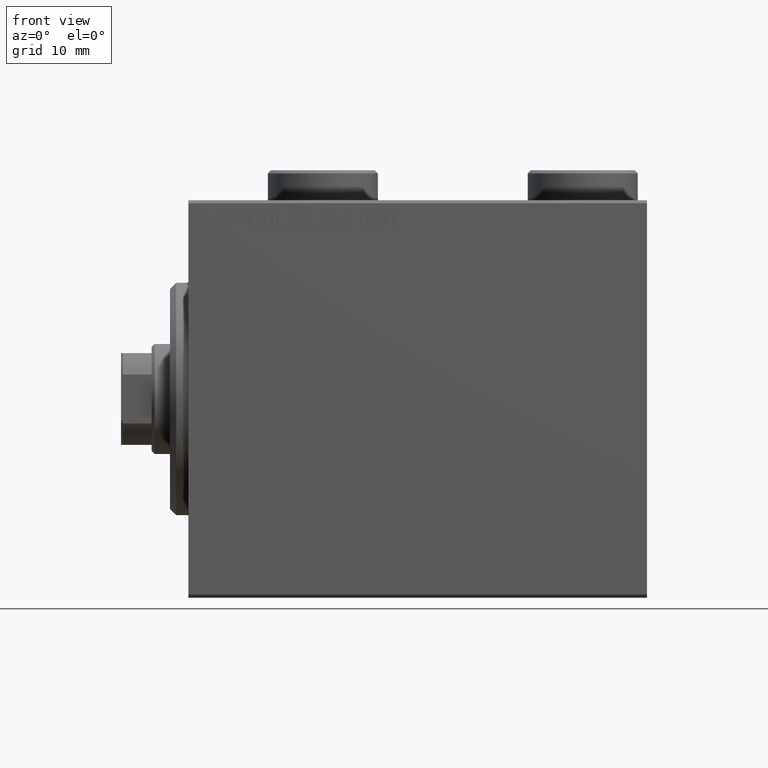
[diagram: clean part render]
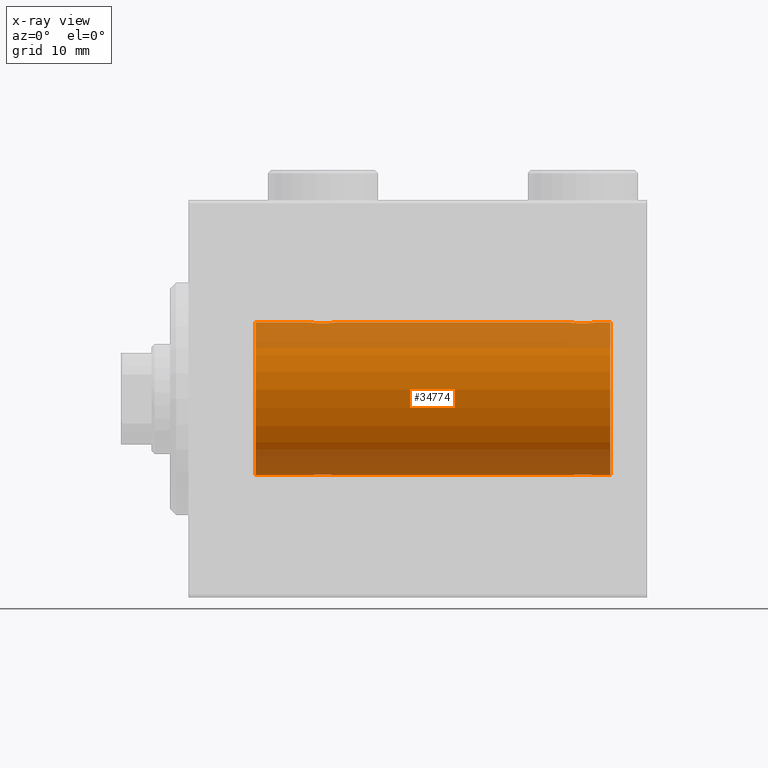
[diagram: x-ray — body ghosted, one internal face saturated and labeled with its STEP entity id]
A machine part, front view, then the same camera in x-ray: the body is ghosted and one INTERNAL B-rep face — a face not visible from any outside direction — is saturated and labeled: STEP entity #34774.
In plain terms, the highlighted cylindrical surface (partial cylindrical patch) has radius 12.5 mm, axis along (-1, -0, -0).
Its self-contained STEP definition (entity closure, byte-faithful):
#73 = CARTESIAN_POINT ( 'NONE',  ( 20.67700056892266502, -1.505544071529935968, 12.40934942683853670 ) ) ;
#268 = CARTESIAN_POINT ( 'NONE',  ( 69.00000000000000000, 0.000000000000000000, 12.50000000000000000 ) ) ;
#290 = CARTESIAN_POINT ( 'NONE',  ( 20.05255659427670167, -0.5247436444070346928, 12.49130933415156619 ) ) ;
#294 = ORIENTED_EDGE ( 'NONE', *, *, #27933, .T. ) ;
#306 = B_SPLINE_CURVE_WITH_KNOTS ( 'NONE', 3,
 ( #1788, #19990, #23441, #13068, #9159, #6612, #41434, #13995, #23895, #17221, #24127, #2705, #35188, #41898, #42118, #10070, #10307, #28270, #9839, #37974, #13533, #10528, #27586, #34515, #31735, #45342, #27818, #42337 ),
 .UNSPECIFIED., .F., .F.,
 ( 4, 2, 2, 2, 2, 2, 2, 2, 2, 2, 2, 2, 2, 4 ),
 ( 0.006262980370572151546, 0.007045658964677331722, 0.007436998261729929616, 0.007828337558782528377, 0.008219676855835125404, 0.008611016152887724165, 0.009002355449940321191, 0.009393694746992919953, 0.009785034044045518714, 0.01017637334109811748, 0.01056771263815071624, 0.01095905193520331326, 0.01174173052930854028, 0.01252440912341376555 ),
 .UNSPECIFIED. ) ;
#958 = CARTESIAN_POINT ( 'NONE',  ( 20.78145880458060901, -1.591305132013878021, -12.39851226212236313 ) ) ;
#1179 = CARTESIAN_POINT ( 'NONE',  ( 23.79785606468258052, -0.8858253204748003373, -12.46915613403960954 ) ) ;
#1329 = EDGE_CURVE ( 'NONE', #27370, #41119, #306, .T. ) ;
#1404 = CARTESIAN_POINT ( 'NONE',  ( 20.67883287148555382, -1.507135374967699670, -12.40915432986587064 ) ) ;
#1487 = LINE ( 'NONE', #43666, #9963 ) ;
#1780 = CIRCLE ( 'NONE', #38624, 12.50000000000000000 ) ;
#1788 = CARTESIAN_POINT ( 'NONE',  ( 62.50000000000000000, -7.266434456262306043E-23, 12.50000000000000000 ) ) ;
#1970 = DIRECTION ( 'NONE',  ( -1.000000000000000000, -0.000000000000000000, -0.000000000000000000 ) ) ;
#2217 = CARTESIAN_POINT ( 'NONE',  ( 23.32116712851443907, -1.507135374967700558, 12.40915432986587064 ) ) ;
#2427 = CARTESIAN_POINT ( 'NONE',  ( 66.00722151467994081, -1.321088093821072729, -12.43033959299025248 ) ) ;
#2458 = CARTESIAN_POINT ( 'NONE',  ( 66.50000000000000000, 3.163483401492493339E-15, 12.50000000000000000 ) ) ;
#2705 = CARTESIAN_POINT ( 'NONE',  ( 63.85356103036409081, -1.897190184049181161, 12.35529285772521213 ) ) ;
#2889 = CARTESIAN_POINT ( 'NONE',  ( 64.76391373102437399, -1.986793270638192999, -12.34112317291865146 ) ) ;
#4417 = CARTESIAN_POINT ( 'NONE',  ( 21.86910032676576421, -2.000082296475566679, -12.33894933996983490 ) ) ;
#4633 = DIRECTION ( 'NONE',  ( 0.000000000000000000, 0.000000000000000000, 1.000000000000000000 ) ) ;
#4643 = CARTESIAN_POINT ( 'NONE',  ( 22.64643896963591985, -1.897190184049187378, -12.35529285772521924 ) ) ;
#4864 = CARTESIAN_POINT ( 'NONE',  ( 22.51961472357873717, -1.935716533151642826, -12.34923763528285257 ) ) ;
#5024 = EDGE_CURVE ( 'NONE', #20405, #34131, #1780, .T. ) ;
#5085 = LINE ( 'NONE', #8529, #28340 ) ;
#5648 = CARTESIAN_POINT ( 'NONE',  ( 63.28145880458059480, -1.591305132013875134, -12.39851226212236135 ) ) ;
#6562 = CARTESIAN_POINT ( 'NONE',  ( 64.36910032676578908, -2.000082296475564458, -12.33894933996983667 ) ) ;
#6612 = CARTESIAN_POINT ( 'NONE',  ( 62.91018909771711520, -1.220538259806350778, 12.44075068685996754 ) ) ;
#6979 = CARTESIAN_POINT ( 'NONE',  ( 22.26093497285607370, -1.987194304939079448, 12.34105826212746138 ) ) ;
#7306 = LINE ( 'NONE', #32216, #10731 ) ;
#7429 = CARTESIAN_POINT ( 'NONE',  ( 23.21854119541938033, -1.591305132013879131, 12.39851226212235957 ) ) ;
#7622 = CARTESIAN_POINT ( 'NONE',  ( 69.00000000000000000, 0.000000000000000000, 0.000000000000000000 ) ) ;
#7632 = CARTESIAN_POINT ( 'NONE',  ( 20.00000000000000000, -0.2646816682749822958, -12.50000000000000000 ) ) ;
#7657 = CARTESIAN_POINT ( 'NONE',  ( 24.00000000000000000, -0.2646816682749787430, 12.50000000000000178 ) ) ;
#7746 = EDGE_CURVE ( 'NONE', #40713, #20405, #5085, .T. ) ;
#7864 = CARTESIAN_POINT ( 'NONE',  ( 22.88874725797039389, -1.796480516834687347, -12.37033750336835247 ) ) ;
#8088 = CARTESIAN_POINT ( 'NONE',  ( 23.58981090228289546, -1.220538259806347225, -12.44075068685997287 ) ) ;
#8506 = EDGE_CURVE ( 'NONE', #44740, #37981, #26852, .T. ) ;
#8529 = CARTESIAN_POINT ( 'NONE',  ( 69.00000000000000000, 1.530808498934191521E-15, -12.50000000000000000 ) ) ;
#9107 = CARTESIAN_POINT ( 'NONE',  ( 63.17883287148555382, -1.507135374967701447, -12.40915432986587064 ) ) ;
#9159 = CARTESIAN_POINT ( 'NONE',  ( 62.76436921980424444, -1.002396200863564291, 12.46022444231050663 ) ) ;
#9566 = CARTESIAN_POINT ( 'NONE',  ( 64.63340250451298630, -1.999916920503812978, -12.33897614545467647 ) ) ;
#9793 = CARTESIAN_POINT ( 'NONE',  ( 65.72027149897421339, -1.589951752150270181, -12.39868561261689095 ) ) ;
#9839 = CARTESIAN_POINT ( 'NONE',  ( 65.14425278797727970, -1.897913903092038890, 12.35518060345724933 ) ) ;
#9858 = CARTESIAN_POINT ( 'NONE',  ( 10.99999999999999645, 0.000000000000000000, 12.50000000000000000 ) ) ;
#9963 = VECTOR ( 'NONE', #29826, 1000.000000000000000 ) ;
#10020 = CARTESIAN_POINT ( 'NONE',  ( 66.08981090228292032, -1.220538259806340786, -12.44075068685997287 ) ) ;
#10070 = CARTESIAN_POINT ( 'NONE',  ( 64.63089967323422513, -2.000082296475560906, 12.33894933996983490 ) ) ;
#10307 = CARTESIAN_POINT ( 'NONE',  ( 64.76093497285604883, -1.987194304939074341, 12.34105826212746138 ) ) ;
#10443 = CARTESIAN_POINT ( 'NONE',  ( 21.48038527642126283, -1.935716533151644825, 12.34923763528284724 ) ) ;
#10528 = CARTESIAN_POINT ( 'NONE',  ( 65.71854119541936257, -1.591305132013873358, 12.39851226212235957 ) ) ;
#10731 = VECTOR ( 'NONE', #25508, 1000.000000000000000 ) ;
#10760 = EDGE_CURVE ( 'NONE', #25108, #34131, #1487, .T. ) ;
#11098 = CARTESIAN_POINT ( 'NONE',  ( 23.32299943107732432, -1.505544071529935080, -12.40934942683853848 ) ) ;
#11545 = VERTEX_POINT ( 'NONE', #11942 ) ;
#11558 = CARTESIAN_POINT ( 'NONE',  ( 23.94744340572329833, -0.5247436444070328054, -12.49130933415156619 ) ) ;
#11783 = CARTESIAN_POINT ( 'NONE',  ( 20.05334320101619738, -0.5275951738695662252, -12.49118442338578561 ) ) ;
#11942 = CARTESIAN_POINT ( 'NONE',  ( 24.00000000000000000, -4.527848004210791175E-16, 12.50000000000000000 ) ) ;
#12798 = CARTESIAN_POINT ( 'NONE',  ( 65.14643896963592340, -1.897190184049178274, -12.35529285772521568 ) ) ;
#13034 = EDGE_CURVE ( 'NONE', #27370, #11545, #7306, .T. ) ;
#13068 = CARTESIAN_POINT ( 'NONE',  ( 62.70214393531739461, -0.8858253204748003373, 12.46915613403960421 ) ) ;
#13486 = CARTESIAN_POINT ( 'NONE',  ( 66.49999999999997158, -0.2612140938986723948, -12.49999999999999822 ) ) ;
#13533 = CARTESIAN_POINT ( 'NONE',  ( 65.50099792098508544, -1.736403706023266658, 12.37902502246767789 ) ) ;
#13619 = CARTESIAN_POINT ( 'NONE',  ( 69.00000000000000000, 0.000000000000000000, 0.000000000000000000 ) ) ;
#13680 = CARTESIAN_POINT ( 'NONE',  ( 20.49277848532005919, -1.321088093821079834, 12.43033959299025071 ) ) ;
#13995 = CARTESIAN_POINT ( 'NONE',  ( 63.17700056892268634, -1.505544071529930639, 12.40934942683854025 ) ) ;
#14326 = LINE ( 'NONE', #42009, #45098 ) ;
#14554 = VERTEX_POINT ( 'NONE', #18853 ) ;
#14790 = CARTESIAN_POINT ( 'NONE',  ( 19.99999999999999645, -3.213890523917628161E-15, -12.50000000000000000 ) ) ;
#14812 = CARTESIAN_POINT ( 'NONE',  ( 23.94665679898380617, -0.5275951738695671134, 12.49118442338578561 ) ) ;
#14831 = CARTESIAN_POINT ( 'NONE',  ( 24.00000000000000000, 1.530808426277417854E-15, -12.50000000000000000 ) ) ;
#15015 = CARTESIAN_POINT ( 'NONE',  ( 21.11383846120566332, -1.797736511708062368, -12.37015393445320122 ) ) ;
#15237 = DIRECTION ( 'NONE',  ( -1.000000000000000000, -0.000000000000000000, -0.000000000000000000 ) ) ;
#15914 = DIRECTION ( 'NONE',  ( -1.000000000000000000, -0.000000000000000000, -0.000000000000000000 ) ) ;
#16250 = CARTESIAN_POINT ( 'NONE',  ( 62.55334320101622581, -0.5275951738695753290, -12.49118442338578916 ) ) ;
#16794 = CARTESIAN_POINT ( 'NONE',  ( 69.00000000000000000, 1.530808498934191521E-15, -12.50000000000000000 ) ) ;
#17000 = CIRCLE ( 'NONE', #28784, 12.50000000000000000 ) ;
#17221 = CARTESIAN_POINT ( 'NONE',  ( 63.49654425923309731, -1.734959850168412254, 12.37922718965051061 ) ) ;
#17306 = DIRECTION ( 'NONE',  ( -1.000000000000000000, -0.000000000000000000, -0.000000000000000000 ) ) ;
#18078 = ORIENTED_EDGE ( 'NONE', *, *, #8506, .T. ) ;
#18472 = CARTESIAN_POINT ( 'NONE',  ( 20.99900207901491811, -1.736403706023270654, -12.37902502246767966 ) ) ;
#18694 = CARTESIAN_POINT ( 'NONE',  ( 23.22027149897420628, -1.589951752150275732, -12.39868561261689273 ) ) ;
#18853 = CARTESIAN_POINT ( 'NONE',  ( 66.50000000000000000, 1.530808426270318106E-15, -12.50000000000000000 ) ) ;
#18920 = CARTESIAN_POINT ( 'NONE',  ( 22.26391373102435622, -1.986793270638196551, -12.34112317291864791 ) ) ;
#19719 = CARTESIAN_POINT ( 'NONE',  ( 65.82299943107733498, -1.505544071529929750, -12.40934942683853848 ) ) ;
#19724 = CARTESIAN_POINT ( 'NONE',  ( 69.00000000000000000, 1.530808498934191521E-15, -12.50000000000000000 ) ) ;
#19858 = EDGE_LOOP ( 'NONE', ( #21560, #27254, #24842, #18078, #32365, #28776, #25466, #38974, #294, #40660, #42915, #34554 ) ) ;
#19877 = VERTEX_POINT ( 'NONE', #16794 ) ;
#19945 = CARTESIAN_POINT ( 'NONE',  ( 65.01961472357872651, -1.935716533151637941, -12.34923763528285079 ) ) ;
#19990 = CARTESIAN_POINT ( 'NONE',  ( 62.49999999999997868, -0.2612140938986745042, 12.50000000000000000 ) ) ;
#20405 = VERTEX_POINT ( 'NONE', #23604 ) ;
#20628 = CARTESIAN_POINT ( 'NONE',  ( 62.90255225308977316, -1.231226695485371669, -12.44059298055988272 ) ) ;
#20665 = B_SPLINE_CURVE_WITH_KNOTS ( 'NONE', 3,
 ( #36447, #43362, #11558, #1179, #32539, #8088, #39684, #11098, #18694, #25376, #7864, #4643, #4864, #18920, #32761, #4417, #28617, #29303, #22151, #15015, #18472, #958, #1404, #39228, #39008, #11783, #7632, #14790 ),
 .UNSPECIFIED., .F., .F.,
 ( 4, 2, 2, 2, 2, 2, 2, 2, 2, 2, 2, 2, 2, 4 ),
 ( 0.006262980370572176700, 0.007045658964677373355, 0.007436998261729973851, 0.007828337558782575215, 0.008219676855835175711, 0.008611016152887776207, 0.009002355449940376703, 0.009393694746992977199, 0.009785034044045577695, 0.01017637334109817646, 0.01056771263815077869, 0.01095905193520337745, 0.01174173052930858711, 0.01252440912341379504 ),
 .UNSPECIFIED. ) ;
#21272 = CARTESIAN_POINT ( 'NONE',  ( 22.88616153879432602, -1.797736511708064144, 12.37015393445320299 ) ) ;
#21560 = ORIENTED_EDGE ( 'NONE', *, *, #30802, .F. ) ;
#22151 = CARTESIAN_POINT ( 'NONE',  ( 21.35574721202270254, -1.897913903092047327, -12.35518060345725289 ) ) ;
#23162 = CARTESIAN_POINT ( 'NONE',  ( 66.50000000000000000, 1.530808426270318106E-15, -12.50000000000000000 ) ) ;
#23441 = CARTESIAN_POINT ( 'NONE',  ( 62.55255659427669457, -0.5247436444070334716, 12.49130933415156441 ) ) ;
#23604 = CARTESIAN_POINT ( 'NONE',  ( 10.99999999999999645, 1.530808498934191521E-15, -12.50000000000000000 ) ) ;
#23620 = CARTESIAN_POINT ( 'NONE',  ( 62.50000000000000000, -6.782673595553849353E-15, -12.50000000000000000 ) ) ;
#23850 = CARTESIAN_POINT ( 'NONE',  ( 62.75337863379105841, -1.008535157355846978, -12.46157701909767290 ) ) ;
#23895 = CARTESIAN_POINT ( 'NONE',  ( 63.27972850102581504, -1.589951752150278397, 12.39868561261688740 ) ) ;
#24080 = CARTESIAN_POINT ( 'NONE',  ( 65.50345574076692401, -1.734959850168405593, -12.37922718965050528 ) ) ;
#24127 = CARTESIAN_POINT ( 'NONE',  ( 63.61125274202959901, -1.796480516834681573, 12.37033750336835958 ) ) ;
#24265 = CARTESIAN_POINT ( 'NONE',  ( 20.99654425923307954, -1.734959850168413587, 12.37922718965051061 ) ) ;
#24494 = CARTESIAN_POINT ( 'NONE',  ( 21.86659749548704212, -1.999916920503820306, 12.33897614545467647 ) ) ;
#24842 = ORIENTED_EDGE ( 'NONE', *, *, #39332, .T. ) ;
#24943 = CARTESIAN_POINT ( 'NONE',  ( 20.26436921980423023, -1.002396200863561404, 12.46022444231050841 ) ) ;
#25108 = VERTEX_POINT ( 'NONE', #44224 ) ;
#25376 = CARTESIAN_POINT ( 'NONE',  ( 23.00345574076691335, -1.734959850168410256, -12.37922718965050528 ) ) ;
#25466 = ORIENTED_EDGE ( 'NONE', *, *, #5024, .T. ) ;
#25508 = DIRECTION ( 'NONE',  ( -1.000000000000000000, -0.000000000000000000, -0.000000000000000000 ) ) ;
#26082 = CARTESIAN_POINT ( 'NONE',  ( 10.99999999999999645, 0.000000000000000000, 0.000000000000000000 ) ) ;
#26303 = DIRECTION ( 'NONE',  ( 0.000000000000000000, 0.000000000000000000, 1.000000000000000000 ) ) ;
#26618 = CARTESIAN_POINT ( 'NONE',  ( 66.29785606468257697, -0.8858253204747996712, -12.46915613403960954 ) ) ;
#26852 = LINE ( 'NONE', #19724, #26910 ) ;
#26910 = VECTOR ( 'NONE', #1970, 1000.000000000000000 ) ;
#27254 = ORIENTED_EDGE ( 'NONE', *, *, #39030, .T. ) ;
#27308 = CARTESIAN_POINT ( 'NONE',  ( 62.50000000000001421, -0.2646816682749852379, -12.50000000000000178 ) ) ;
#27370 = VERTEX_POINT ( 'NONE', #39196 ) ;
#27586 = CARTESIAN_POINT ( 'NONE',  ( 65.82116712851446039, -1.507135374967687458, 12.40915432986586886 ) ) ;
#27706 = DIRECTION ( 'NONE',  ( -1.000000000000000000, -0.000000000000000000, -0.000000000000000000 ) ) ;
#27818 = CARTESIAN_POINT ( 'NONE',  ( 66.50000000000001421, -0.2646816682749792982, 12.50000000000000178 ) ) ;
#27933 = EDGE_CURVE ( 'NONE', #25108, #11545, #36473, .T. ) ;
#27961 = CARTESIAN_POINT ( 'NONE',  ( 21.11125274202960256, -1.796480516834690233, 12.37033750336835958 ) ) ;
#28187 = CARTESIAN_POINT ( 'NONE',  ( 22.51693726697628151, -1.936441098420708773, 12.34912369794528608 ) ) ;
#28270 = CARTESIAN_POINT ( 'NONE',  ( 65.01693726697625664, -1.936441098420705220, 12.34912369794528786 ) ) ;
#28340 = VECTOR ( 'NONE', #15914, 1000.000000000000000 ) ;
#28617 = CARTESIAN_POINT ( 'NONE',  ( 21.73906502714393341, -1.987194304939077671, -12.34105826212746138 ) ) ;
#28776 = ORIENTED_EDGE ( 'NONE', *, *, #7746, .T. ) ;
#28784 = AXIS2_PLACEMENT_3D ( 'NONE', #7622, #43127, #4633 ) ;
#29303 = CARTESIAN_POINT ( 'NONE',  ( 21.48306273302371494, -1.936441098420706997, -12.34912369794528431 ) ) ;
#29324 = CARTESIAN_POINT ( 'NONE',  ( 23.59744774691023039, -1.231226695485369893, 12.44059298055988272 ) ) ;
#29561 = DIRECTION ( 'NONE',  ( -1.000000000000000000, 0.000000000000000000, 0.000000000000000000 ) ) ;
#29826 = DIRECTION ( 'NONE',  ( -1.000000000000000000, -0.000000000000000000, -0.000000000000000000 ) ) ;
#30005 = CARTESIAN_POINT ( 'NONE',  ( 62.50000000000000000, -6.782673595553849353E-15, -12.50000000000000000 ) ) ;
#30319 = CARTESIAN_POINT ( 'NONE',  ( 64.23906502714395117, -1.987194304939075673, -12.34105826212746138 ) ) ;
#30802 = EDGE_CURVE ( 'NONE', #19877, #31403, #17000, .T. ) ;
#31138 = FACE_OUTER_BOUND ( 'NONE', #19858, .T. ) ;
#31195 = CARTESIAN_POINT ( 'NONE',  ( 19.99999999999999645, -7.265724481447607133E-23, 12.50000000000000000 ) ) ;
#31403 = VERTEX_POINT ( 'NONE', #37229 ) ;
#31653 = CARTESIAN_POINT ( 'NONE',  ( 19.99999999999999289, -0.2612140938986765581, 12.50000000000000000 ) ) ;
#31735 = CARTESIAN_POINT ( 'NONE',  ( 66.24662136620894159, -1.008535157355832768, 12.46157701909768178 ) ) ;
#31819 = CYLINDRICAL_SURFACE ( 'NONE', #39095, 12.50000000000000000 ) ;
#32216 = CARTESIAN_POINT ( 'NONE',  ( 69.00000000000000000, 0.000000000000000000, 12.50000000000000000 ) ) ;
#32365 = ORIENTED_EDGE ( 'NONE', *, *, #32680, .T. ) ;
#32539 = CARTESIAN_POINT ( 'NONE',  ( 23.73563078019576977, -1.002396200863559184, -12.46022444231050663 ) ) ;
#32617 = EDGE_CURVE ( 'NONE', #31403, #41119, #34403, .T. ) ;
#32680 = EDGE_CURVE ( 'NONE', #37981, #40713, #20665, .T. ) ;
#32761 = CARTESIAN_POINT ( 'NONE',  ( 22.13340250451295077, -1.999916920503817197, -12.33897614545467469 ) ) ;
#33776 = CARTESIAN_POINT ( 'NONE',  ( 65.38874725797043652, -1.796480516834676466, -12.37033750336835425 ) ) ;
#34131 = VERTEX_POINT ( 'NONE', #9858 ) ;
#34403 = LINE ( 'NONE', #268, #37569 ) ;
#34515 = CARTESIAN_POINT ( 'NONE',  ( 66.09744774691023395, -1.231226695485355904, 12.44059298055988450 ) ) ;
#34554 = ORIENTED_EDGE ( 'NONE', *, *, #32617, .F. ) ;
#34774 = ADVANCED_FACE ( 'NONE', ( #31138 ), #31819, .F. ) ;
#35188 = CARTESIAN_POINT ( 'NONE',  ( 63.98038527642127349, -1.935716533151639718, 12.34923763528284546 ) ) ;
#35335 = CARTESIAN_POINT ( 'NONE',  ( 23.00099792098508189, -1.736403706023272431, 12.37902502246767966 ) ) ;
#36447 = CARTESIAN_POINT ( 'NONE',  ( 24.00000000000000000, 1.530808426277417854E-15, -12.50000000000000000 ) ) ;
#36473 = B_SPLINE_CURVE_WITH_KNOTS ( 'NONE', 3,
 ( #31195, #31653, #290, #42482, #24943, #39032, #13680, #73, #41814, #24265, #27961, #42034, #10443, #38805, #24494, #38580, #6979, #28187, #42259, #21272, #35335, #7429, #2217, #29324, #43160, #14812, #7657, #43382 ),
 .UNSPECIFIED., .F., .F.,
 ( 4, 2, 2, 2, 2, 2, 2, 2, 2, 2, 2, 2, 2, 4 ),
 ( 0.006262980370572172363, 0.007045658964677369886, 0.007436998261729971249, 0.007828337558782571745, 0.008219676855835172241, 0.008611016152887774472, 0.009002355449940373233, 0.009393694746992975464, 0.009785034044045575960, 0.01017637334109817646, 0.01056771263815077869, 0.01095905193520337918, 0.01174173052930858538, 0.01252440912341379504 ),
 .UNSPECIFIED. ) ;
#36924 = CARTESIAN_POINT ( 'NONE',  ( 19.99999999999999645, -3.213890523917628161E-15, -12.50000000000000000 ) ) ;
#37229 = CARTESIAN_POINT ( 'NONE',  ( 69.00000000000000000, 0.000000000000000000, 12.50000000000000000 ) ) ;
#37240 = CARTESIAN_POINT ( 'NONE',  ( 63.49900207901494298, -1.736403706023268878, -12.37902502246768321 ) ) ;
#37569 = VECTOR ( 'NONE', #27706, 1000.000000000000000 ) ;
#37697 = CARTESIAN_POINT ( 'NONE',  ( 63.85574721202269188, -1.897913903092045329, -12.35518060345724933 ) ) ;
#37974 = CARTESIAN_POINT ( 'NONE',  ( 65.38616153879434023, -1.797736511708053264, 12.37015393445321010 ) ) ;
#37981 = VERTEX_POINT ( 'NONE', #14831 ) ;
#38161 = CARTESIAN_POINT ( 'NONE',  ( 66.44744340572329122, -0.5247436444070331385, -12.49130933415156619 ) ) ;
#38580 = CARTESIAN_POINT ( 'NONE',  ( 22.13089967323422869, -2.000082296475568011, 12.33894933996983134 ) ) ;
#38624 = AXIS2_PLACEMENT_3D ( 'NONE', #26082, #29561, #26303 ) ;
#38805 = CARTESIAN_POINT ( 'NONE',  ( 21.73608626897565799, -1.986793270638199438, 12.34112317291865502 ) ) ;
#38974 = ORIENTED_EDGE ( 'NONE', *, *, #10760, .F. ) ;
#39008 = CARTESIAN_POINT ( 'NONE',  ( 20.25337863379106551, -1.008535157355840761, -12.46157701909767646 ) ) ;
#39030 = EDGE_CURVE ( 'NONE', #19877, #14554, #14326, .T. ) ;
#39032 = CARTESIAN_POINT ( 'NONE',  ( 20.41018909771710454, -1.220538259806349446, 12.44075068685996932 ) ) ;
#39095 = AXIS2_PLACEMENT_3D ( 'NONE', #13619, #17306, #41754 ) ;
#39196 = CARTESIAN_POINT ( 'NONE',  ( 62.50000000000000000, -7.266434456262306043E-23, 12.50000000000000000 ) ) ;
#39228 = CARTESIAN_POINT ( 'NONE',  ( 20.40255225308977671, -1.231226695485369893, -12.44059298055988627 ) ) ;
#39332 = EDGE_CURVE ( 'NONE', #14554, #44740, #40523, .T. ) ;
#39684 = CARTESIAN_POINT ( 'NONE',  ( 23.50722151467992660, -1.321088093821078502, -12.43033959299025248 ) ) ;
#40523 = B_SPLINE_CURVE_WITH_KNOTS ( 'NONE', 3,
 ( #23162, #13486, #38161, #26618, #41156, #10020, #2427, #19719, #9793, #24080, #33776, #12798, #19945, #2889, #9566, #6562, #30319, #44835, #37697, #44385, #37240, #5648, #9107, #20628, #23850, #16250, #27308, #23620 ),
 .UNSPECIFIED., .F., .F.,
 ( 4, 2, 2, 2, 2, 2, 2, 2, 2, 2, 2, 2, 2, 4 ),
 ( 0.006262980370572170628, 0.007045658964677357743, 0.007436998261729959973, 0.007828337558782561337, 0.008219676855835163568, 0.008611016152887764064, 0.009002355449940366294, 0.009393694746992968525, 0.009785034044045570756, 0.01017637334109817299, 0.01056771263815077348, 0.01095905193520337745, 0.01174173052930858191, 0.01252440912341378637 ),
 .UNSPECIFIED. ) ;
#40660 = ORIENTED_EDGE ( 'NONE', *, *, #13034, .F. ) ;
#40713 = VERTEX_POINT ( 'NONE', #36924 ) ;
#41119 = VERTEX_POINT ( 'NONE', #2458 ) ;
#41156 = CARTESIAN_POINT ( 'NONE',  ( 66.23563078019577688, -1.002396200863551412, -12.46022444231050841 ) ) ;
#41434 = CARTESIAN_POINT ( 'NONE',  ( 62.99277848532008761, -1.321088093821075393, 12.43033959299025426 ) ) ;
#41754 = DIRECTION ( 'NONE',  ( 0.000000000000000000, 0.000000000000000000, 1.000000000000000000 ) ) ;
#41814 = CARTESIAN_POINT ( 'NONE',  ( 20.77972850102578661, -1.589951752150277287, 12.39868561261688917 ) ) ;
#41898 = CARTESIAN_POINT ( 'NONE',  ( 64.23608626897566864, -1.986793270638193443, 12.34112317291865146 ) ) ;
#42009 = CARTESIAN_POINT ( 'NONE',  ( 69.00000000000000000, 1.530808498934191521E-15, -12.50000000000000000 ) ) ;
#42034 = CARTESIAN_POINT ( 'NONE',  ( 21.35356103036408371, -1.897190184049189599, 12.35529285772521391 ) ) ;
#42118 = CARTESIAN_POINT ( 'NONE',  ( 64.36659749548704212, -1.999916920503812534, 12.33897614545467647 ) ) ;
#42259 = CARTESIAN_POINT ( 'NONE',  ( 22.64425278797729391, -1.897913903092048438, 12.35518060345725111 ) ) ;
#42337 = CARTESIAN_POINT ( 'NONE',  ( 66.50000000000000000, 3.163483401492493339E-15, 12.50000000000000000 ) ) ;
#42482 = CARTESIAN_POINT ( 'NONE',  ( 20.20214393531741237, -0.8858253204748024467, 12.46915613403961309 ) ) ;
#42915 = ORIENTED_EDGE ( 'NONE', *, *, #1329, .T. ) ;
#43127 = DIRECTION ( 'NONE',  ( -1.000000000000000000, 0.000000000000000000, 0.000000000000000000 ) ) ;
#43160 = CARTESIAN_POINT ( 'NONE',  ( 23.74662136620892383, -1.008535157355842538, 12.46157701909767646 ) ) ;
#43362 = CARTESIAN_POINT ( 'NONE',  ( 24.00000000000000711, -0.2612140938986747818, -12.50000000000000533 ) ) ;
#43382 = CARTESIAN_POINT ( 'NONE',  ( 24.00000000000000000, -4.527848004210791175E-16, 12.50000000000000000 ) ) ;
#43666 = CARTESIAN_POINT ( 'NONE',  ( 69.00000000000000000, 0.000000000000000000, 12.50000000000000000 ) ) ;
#44224 = CARTESIAN_POINT ( 'NONE',  ( 19.99999999999999645, -7.265724481447607133E-23, 12.50000000000000000 ) ) ;
#44385 = CARTESIAN_POINT ( 'NONE',  ( 63.61383846120567398, -1.797736511708062368, -12.37015393445320832 ) ) ;
#44740 = VERTEX_POINT ( 'NONE', #30005 ) ;
#44835 = CARTESIAN_POINT ( 'NONE',  ( 63.98306273302372915, -1.936441098420705886, -12.34912369794528786 ) ) ;
#45098 = VECTOR ( 'NONE', #15237, 1000.000000000000000 ) ;
#45342 = CARTESIAN_POINT ( 'NONE',  ( 66.44665679898379551, -0.5275951738695600080, 12.49118442338578561 ) ) ;